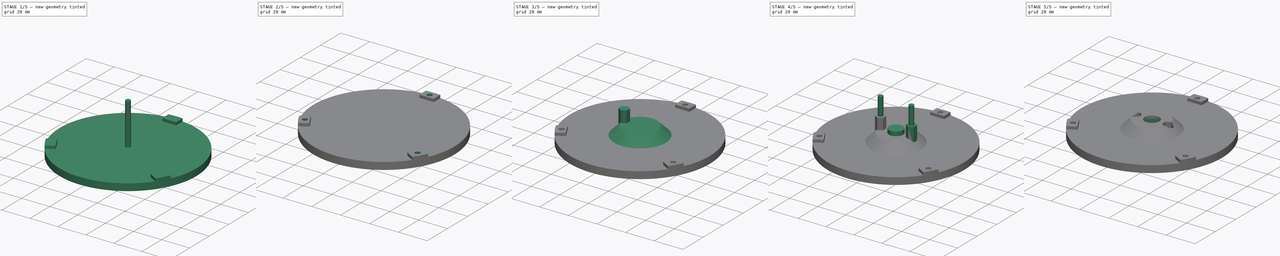
[diagram: build sequence overview — one tinted view per stage of 5, left to right]
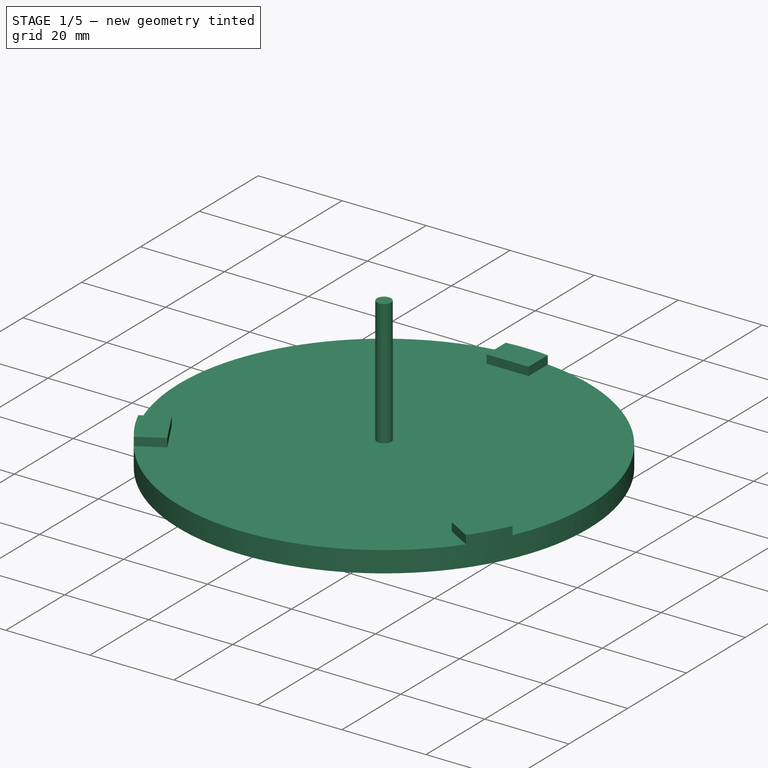
[diagram: stage 1 of 5 — iso view after this stage's code; geometry added in this stage tinted green]
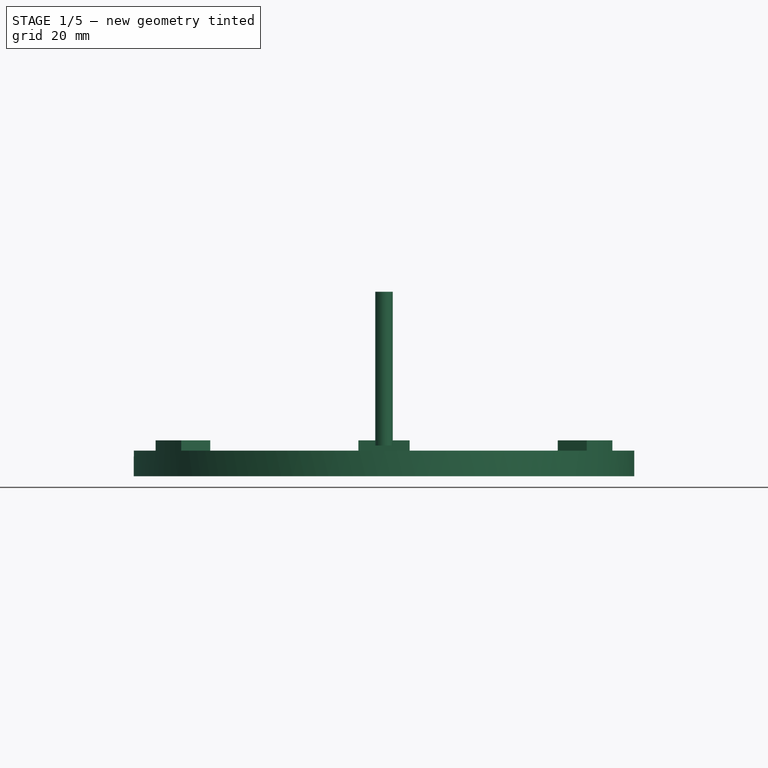
[diagram: stage 1 of 5 — front view after this stage's code; geometry added in this stage tinted green]
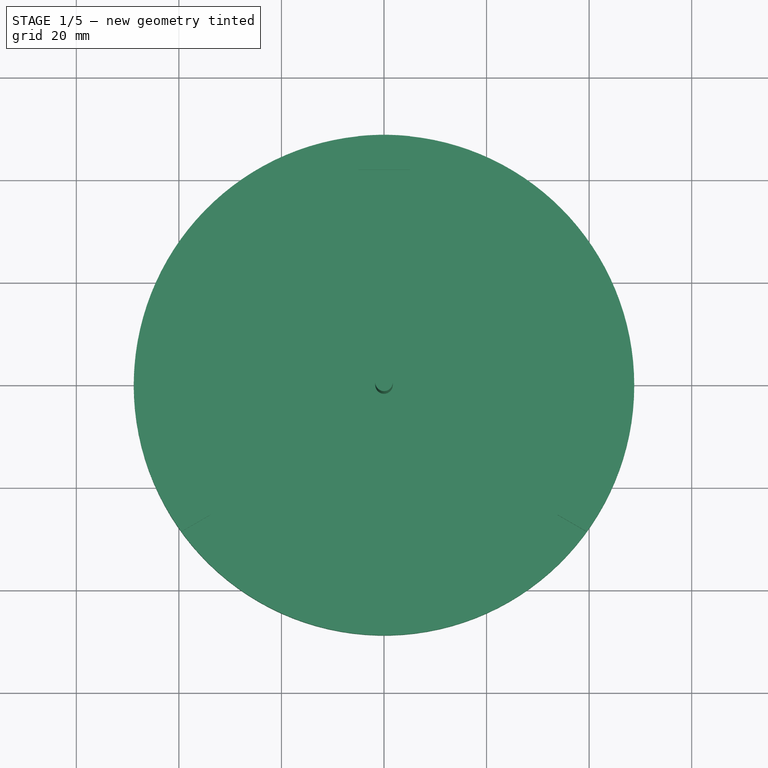
[diagram: stage 1 of 5 — top view after this stage's code; geometry added in this stage tinted green]
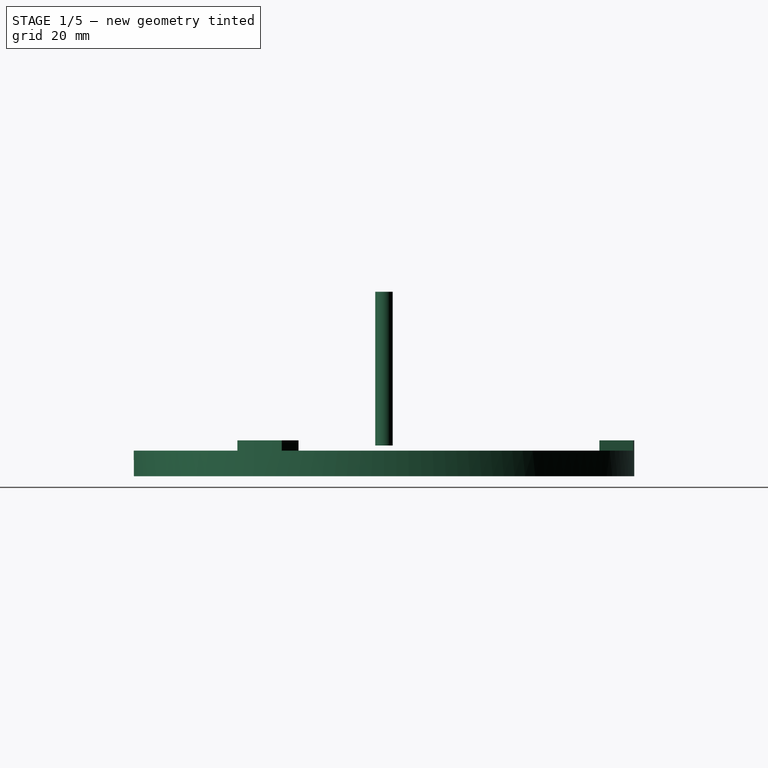
[diagram: stage 1 of 5 — right view after this stage's code; geometry added in this stage tinted green]
FCSTD DOCUMENT  (FreeCAD 0.16R6458 (Git))
Label: Art2BodyAWindow
License: All rights reserved
LicenseURL: http://en.wikipedia.org/wiki/All_rights_reserved
objects: Part::FeaturePython×10, Part::Cylinder×5, Part::MultiFuse×4, Sketcher::SketchObject×2, Part::Cut×2, Part::Prism×1, PartDesign::Revolution×1, PartDesign::Pad×1, Part::Box×1, App::DocumentObjectGroup×1
note: 29 computed .brp shape members not serialized (recipe doc carries the construction recipe); baked Part::Feature solids carry a one-line shape summary decoded from their .brp

FEATURE [Part::Cylinder] Cylinder001  label="M3BoltBody"
  Angle = 360
  Height = 30
  Placement = pos=(0,0,6) rot=(0,0,1;0rad)
  Radius = 1.7
FEATURE [Sketcher::SketchObject] Sketch027
  Placement = pos=(0,0,5) rot=(0,0,1;0rad)
  sketch-geometry (4):
    g0: ArcOfCircle CenterX=0 CenterY=0 CenterZ=0 NormalX=0 NormalY=0 NormalZ=1 Radius=48.8 StartAngle=1.46816 EndAngle=1.67344
    g1: LineSegment StartX=5 StartY=48.5432 StartZ=0 EndX=5 EndY=42 EndZ=0
    g2: LineSegment StartX=5 StartY=42 StartZ=0 EndX=-5 EndY=42 EndZ=0
    g3: LineSegment StartX=-5 StartY=42 StartZ=0 EndX=-5 EndY=48.5432 EndZ=0
  constraints (12):
    c: Coincident(g0,g-1)
    c: Coincident(g1,g2)
    c: Coincident(g2,g3)
    c: Horizontal(g2)
    c: Vertical(g1)
    c: Vertical(g3)
    c: DistanceX(g2) = -10
    c: Radius(g0) = 48.8
    c: DistanceY(g-1,g1) = 42
    c: DistanceX(g-1,g1) = 5
    c: Coincident(g3,g0)
    c: Coincident(g1,g0)
FEATURE [PartDesign::Pad] Pad019
  Length = 2
  Length2 = 100
  Placement = pos=(0,0,5) rot=(0,0,1;0rad)
  Sketch = -> Sketch027
  Type = 0
FEATURE [Part::Cylinder] Cylinder1014  label="Cylinder020"
  Angle = 360
  Height = 5
  Radius = 48.8
FEATURE [Part::FeaturePython] Array007  # Draft array (typed FeaturePython)
  Angle = 360
  ArrayType = 1
  Axis = (0,0,1)
  Base = -> Pad019
  Center = (0,0,0)
  Fuse = false
  IntervalAxis = (0,0,0)
  IntervalX = (1,0,0)
  IntervalY = (0,1,0)
  IntervalZ = (0,0,0)
  NumberPolar = 3
  NumberX = 2
  NumberY = 2
  NumberZ = 1
FEATURE [App::DocumentObjectGroup] Group  label="Master"
  Group = -> [Fusion,Prism,Revolution003,Cylinder1003,Fusion062]
FEATURE [Part::MultiFuse] Fusion063
  Shapes = -> [Array007,Cylinder1014]
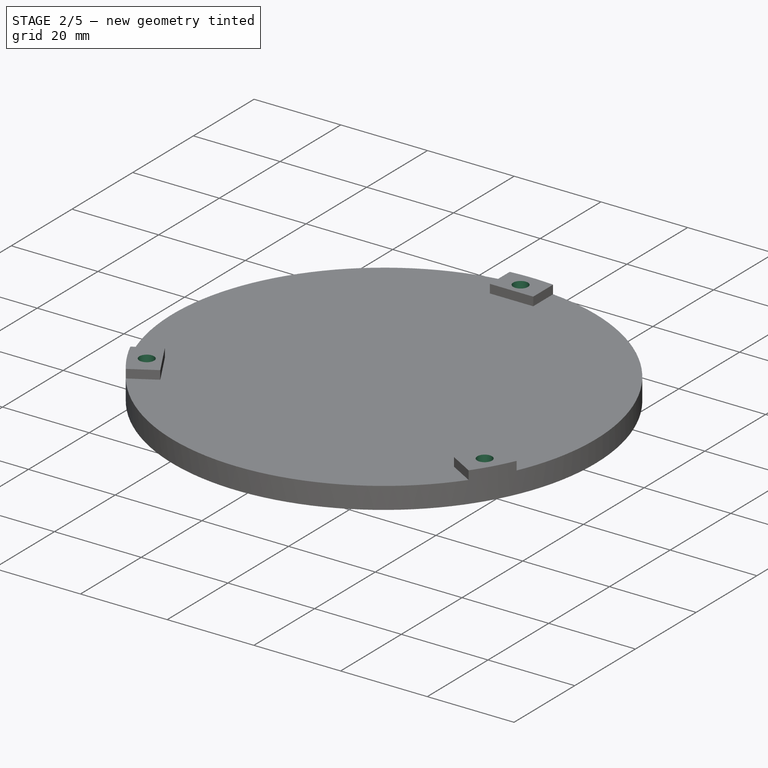
[diagram: stage 2 of 5 — iso view after this stage's code; geometry added in this stage tinted green]
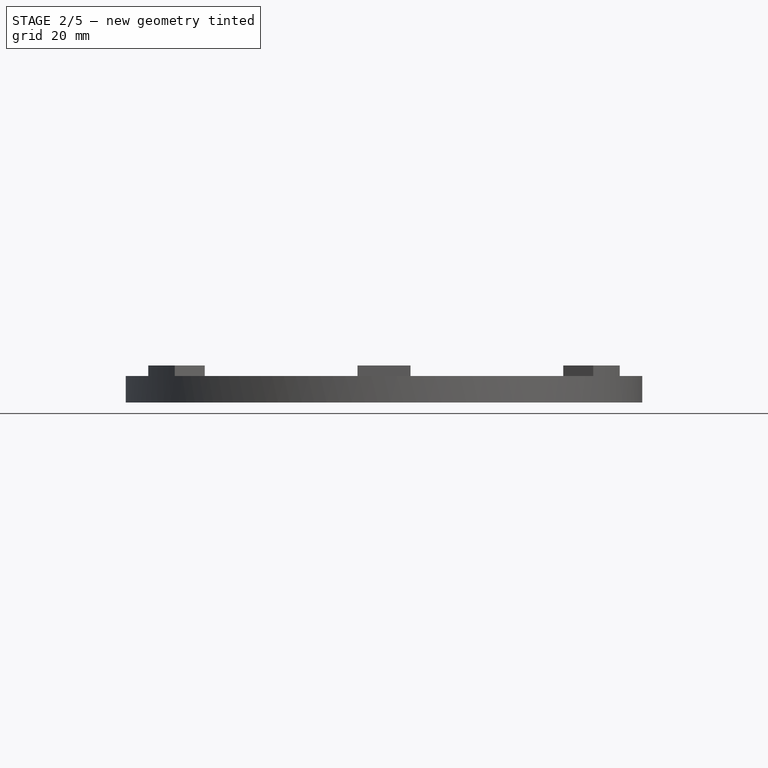
[diagram: stage 2 of 5 — front view after this stage's code; geometry added in this stage tinted green]
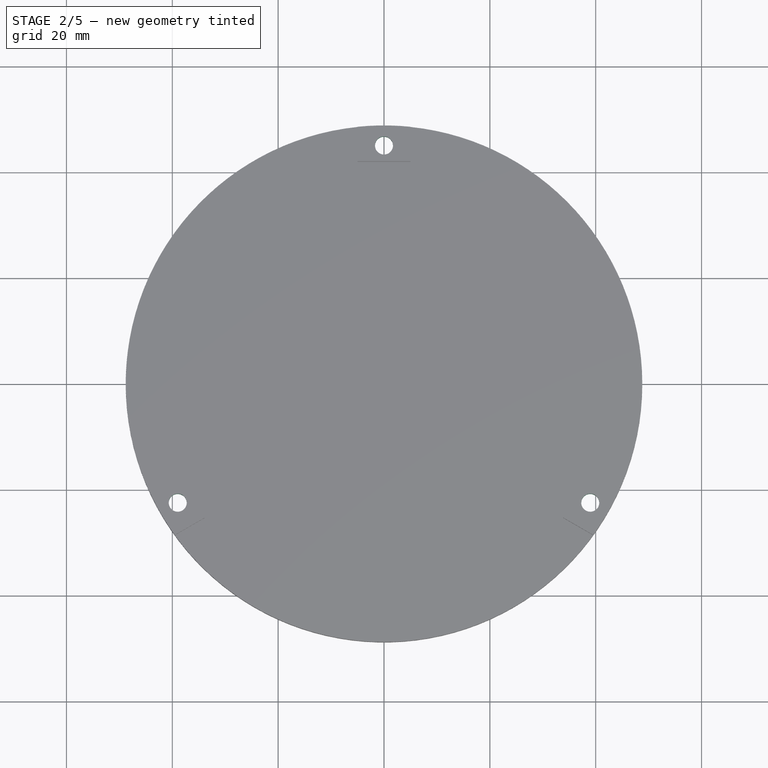
[diagram: stage 2 of 5 — top view after this stage's code; geometry added in this stage tinted green]
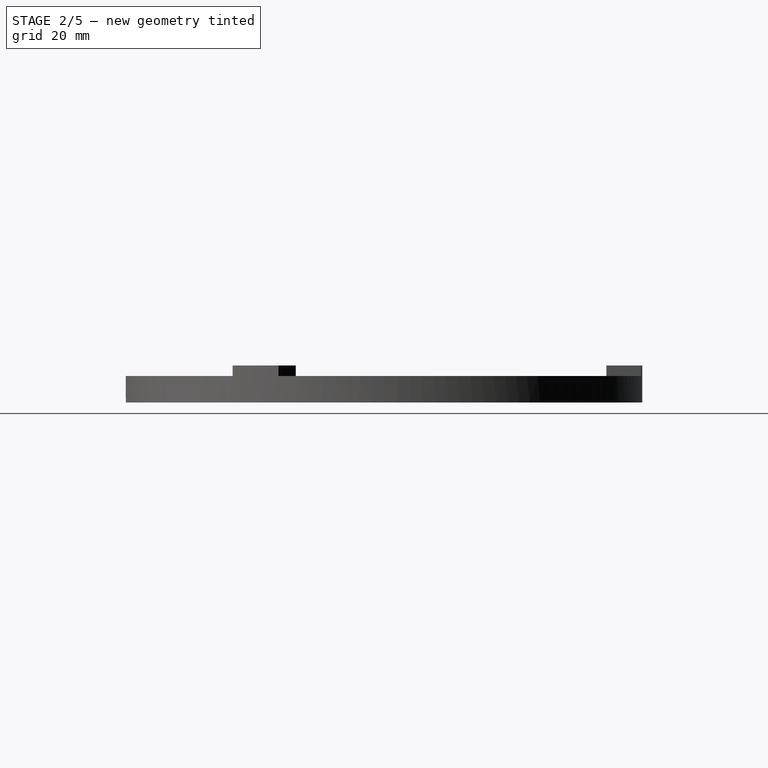
[diagram: stage 2 of 5 — right view after this stage's code; geometry added in this stage tinted green]
FEATURE [Part::Cylinder] Cylinder  label="M3BoltHead"
  Angle = 360
  Height = 7
  Radius = 2.95
FEATURE [Part::MultiFuse] Fusion  label="M3Bolt"
  Shapes = -> [Cylinder001,Cylinder]
FEATURE [Part::FeaturePython] Clone134  label="Clone of M3Bolt038"  # Draft clone (typed FeaturePython)
  Objects = -> [Fusion]
  Placement = pos=(0,45,-4) rot=(0,0,1;0rad)
  Scale = (1,1,1)
FEATURE [Part::FeaturePython] Array008  # Draft array (typed FeaturePython)
  Angle = 360
  ArrayType = 1
  Axis = (0,0,1)
  Base = -> Clone134
  Center = (0,0,0)
  Fuse = false
  IntervalAxis = (0,0,0)
  IntervalX = (1,0,0)
  IntervalY = (0,1,0)
  IntervalZ = (0,0,0)
  NumberPolar = 3
  NumberX = 2
  NumberY = 2
  NumberZ = 1
FEATURE [Part::Cut] Cut
  Base = -> Fusion063
  Tool = -> Array008
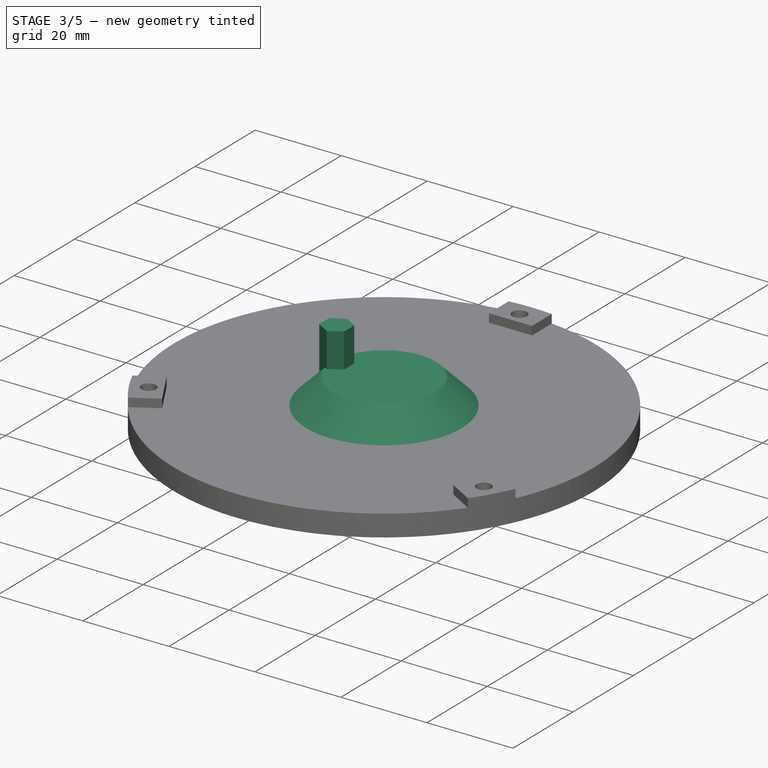
[diagram: stage 3 of 5 — iso view after this stage's code; geometry added in this stage tinted green]
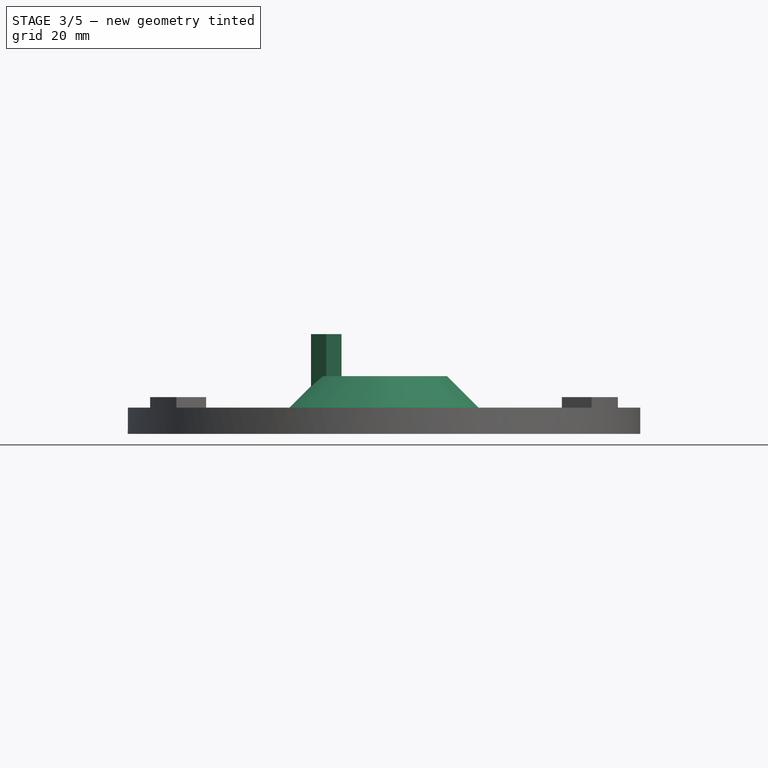
[diagram: stage 3 of 5 — front view after this stage's code; geometry added in this stage tinted green]
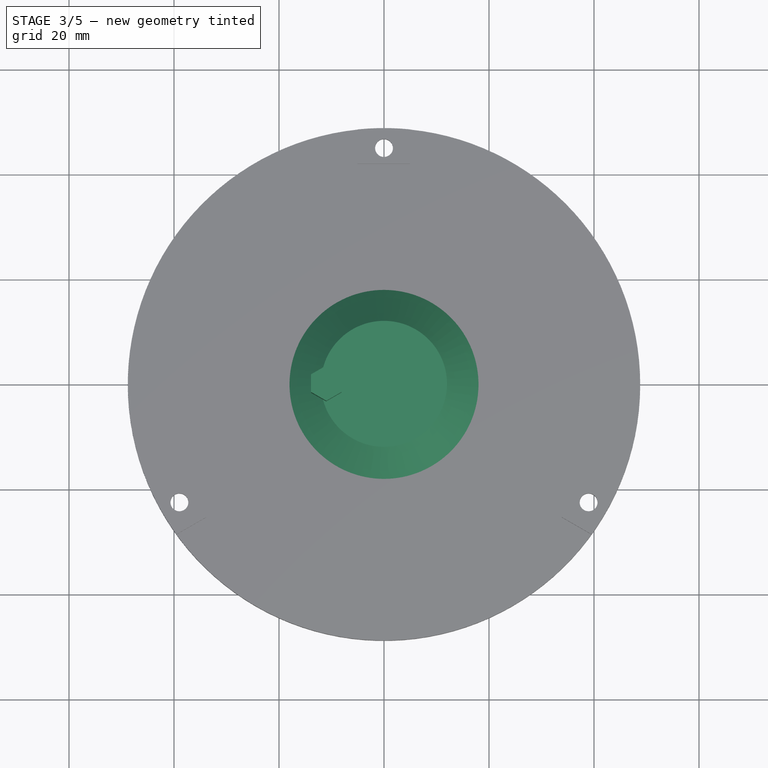
[diagram: stage 3 of 5 — top view after this stage's code; geometry added in this stage tinted green]
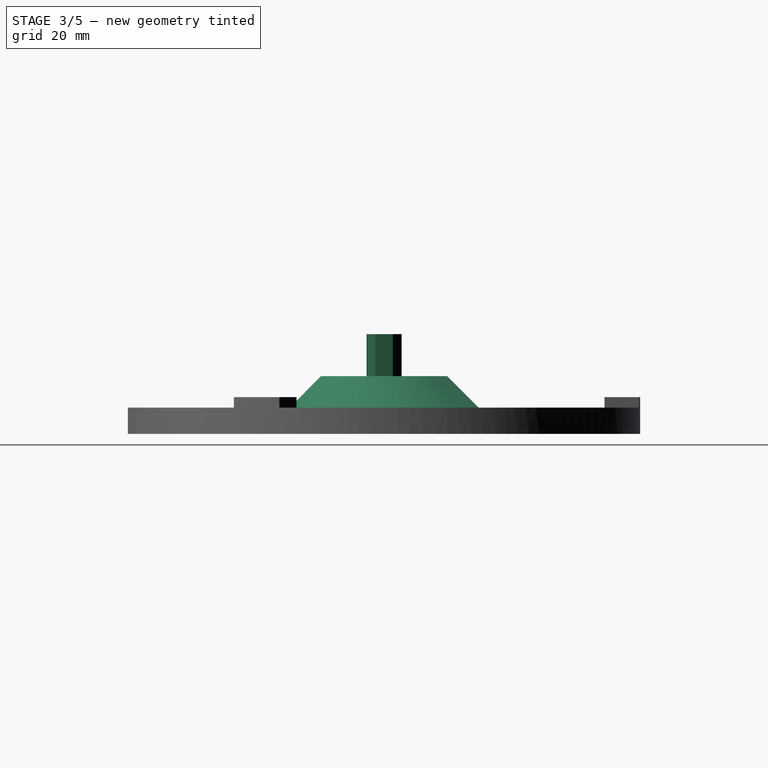
[diagram: stage 3 of 5 — right view after this stage's code; geometry added in this stage tinted green]
FEATURE [Part::Prism] Prism  label="M3Nut"
  Circumradius = 3.35
  Height = 12
  Polygon = 6
FEATURE [Sketcher::SketchObject] Sketch016
  sketch-geometry (4):
    g0: LineSegment StartX=0 StartY=0 StartZ=0 EndX=0 EndY=18 EndZ=0
    g1: LineSegment StartX=0 StartY=18 StartZ=0 EndX=6 EndY=12 EndZ=0
    g2: LineSegment StartX=6 StartY=12 StartZ=0 EndX=6 EndY=0 EndZ=0
    g3: LineSegment StartX=0 StartY=0 StartZ=0 EndX=6 EndY=0 EndZ=0
  constraints (11):
    c: Coincident(g0,g-1)
    c: Vertical(g0)
    c: Coincident(g1,g0)
    c: Coincident(g2,g1)
    c: PointOnObject(g2,g-1)
    c: Vertical(g2)
    c: Coincident(g3,g-1)
    c: Coincident(g3,g2)
    c: DistanceY(g2) = -12
    c: DistanceX(g3) = 6
    c: Angle(g1,g-1) = 0.785398
FEATURE [PartDesign::Revolution] Revolution003  label="625ZZBearingHousingNoHoles"
  Angle = 360
  Axis = (1,0,0)
  Base = (0,0,0)
  ReferenceAxis = -> Sketch016 [H_Axis]
  Sketch = -> Sketch016
FEATURE [Part::FeaturePython] Clone135  label="Clone of 625ZZBearingHousingNoHoles"  # Draft clone (typed FeaturePython)
  Objects = -> [Revolution003]
  Placement = pos=(0,0,5) rot=(0,-1,0;1.5708rad)
  Scale = (1,1,1)
FEATURE [Part::FeaturePython] Clone140  label="Clone of M3Nut006"  # Draft clone (typed FeaturePython)
  Objects = -> [Prism]
  Placement = pos=(-11,0,7) rot=(0,0,1;0.523599rad)
  Scale = (1,1,1)
FEATURE [Part::MultiFuse] Fusion064
  Shapes = -> [Cut,Clone135]
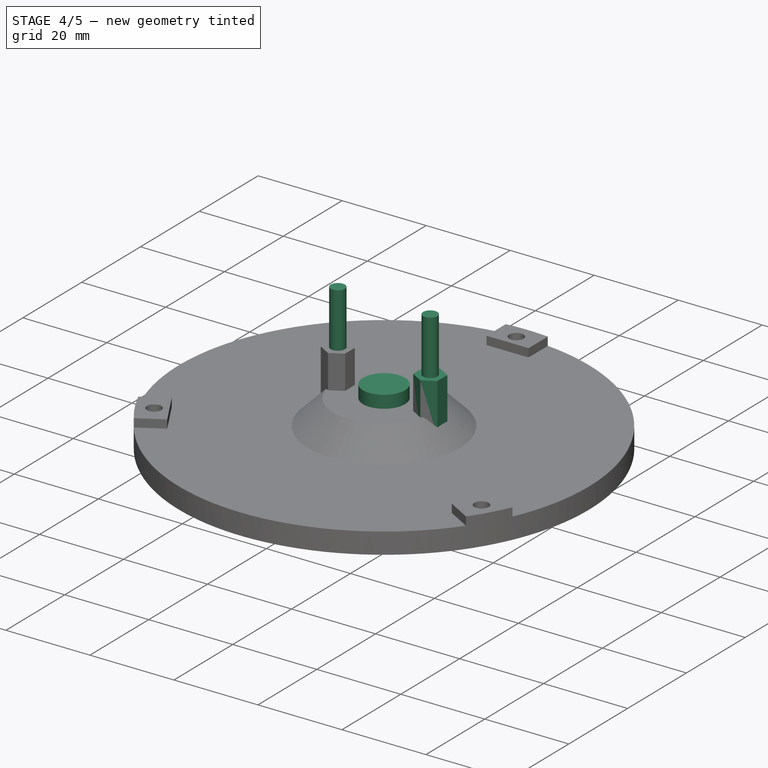
[diagram: stage 4 of 5 — iso view after this stage's code; geometry added in this stage tinted green]
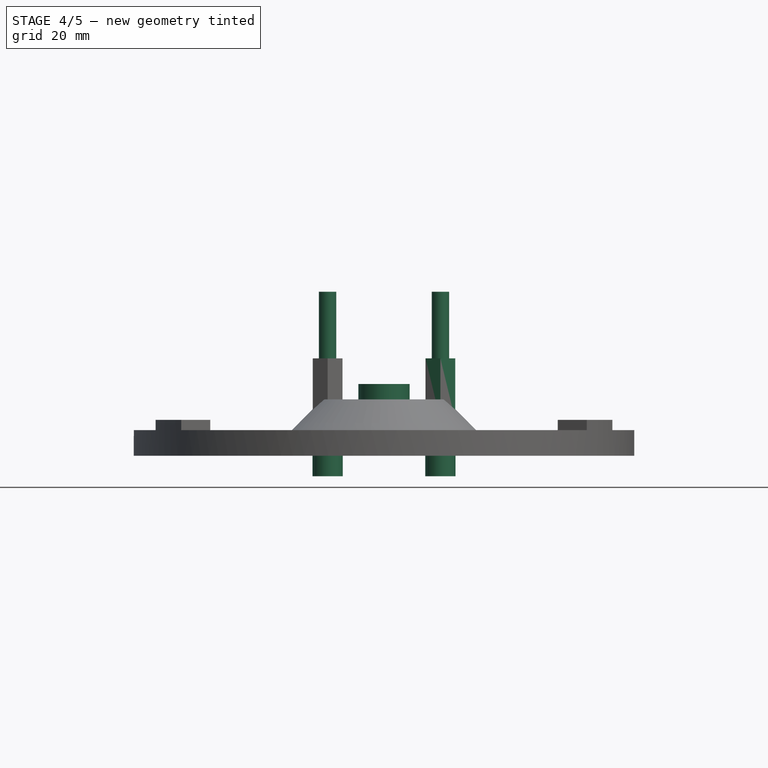
[diagram: stage 4 of 5 — front view after this stage's code; geometry added in this stage tinted green]
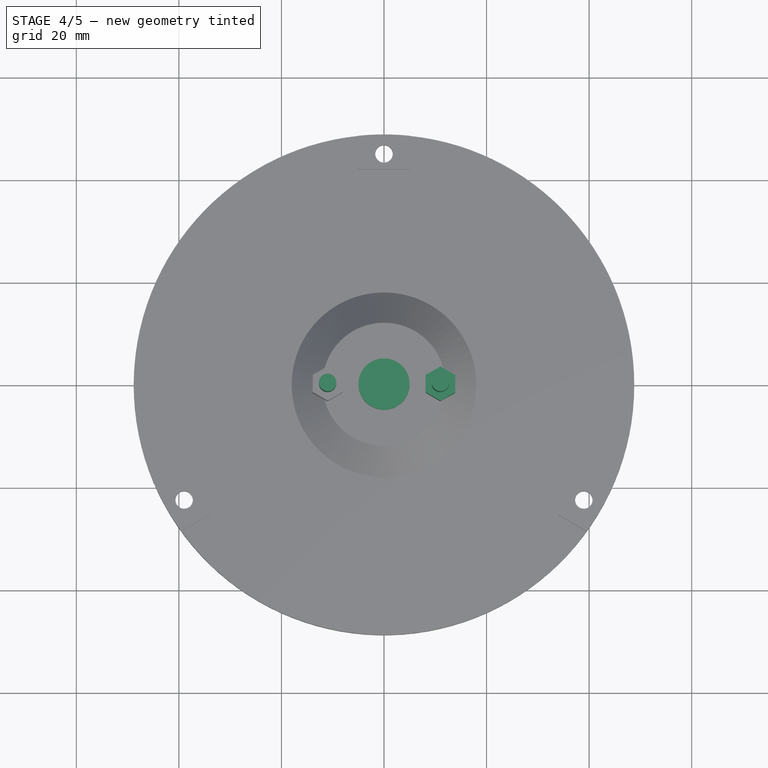
[diagram: stage 4 of 5 — top view after this stage's code; geometry added in this stage tinted green]
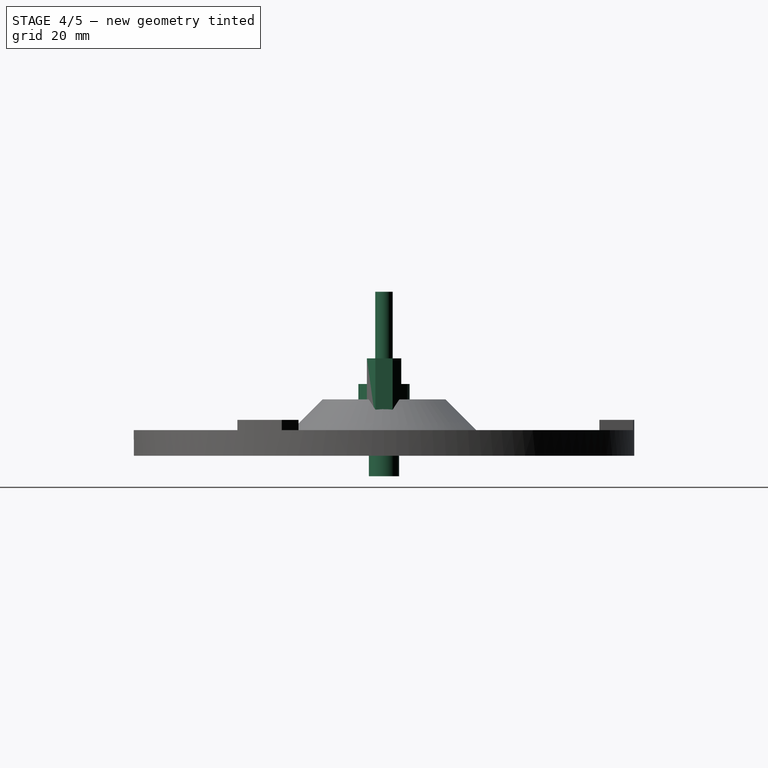
[diagram: stage 4 of 5 — right view after this stage's code; geometry added in this stage tinted green]
FEATURE [Part::Cylinder] Cylinder1015  label="Cylinder021"
  Angle = 360
  Height = 10
  Placement = pos=(0,0,4) rot=(0,0,1;0rad)
  Radius = 5
FEATURE [Part::Box] Box251  label="Cube015"
  Height = 4
  Length = 30.6
  Placement = pos=(-15.3,-3.5,0) rot=(0,0,1;0rad)
  Width = 7
FEATURE [Part::FeaturePython] Clone137  label="Clone of M3Bolt039"  # Draft clone (typed FeaturePython)
  Objects = -> [Fusion]
  Placement = pos=(11,0,-4) rot=(0,0,1;0rad)
  Scale = (1,1,1)
FEATURE [Part::FeaturePython] Clone138  label="Clone of M3Bolt040"  # Draft clone (typed FeaturePython)
  Objects = -> [Fusion]
  Placement = pos=(-11,0,-4) rot=(0,0,1;0rad)
  Scale = (1,1,1)
FEATURE [Part::FeaturePython] Clone139  label="Clone of M3Nut005"  # Draft clone (typed FeaturePython)
  Objects = -> [Prism]
  Placement = pos=(11,0,7) rot=(0,0,1;0.523599rad)
  Scale = (1,1,1)
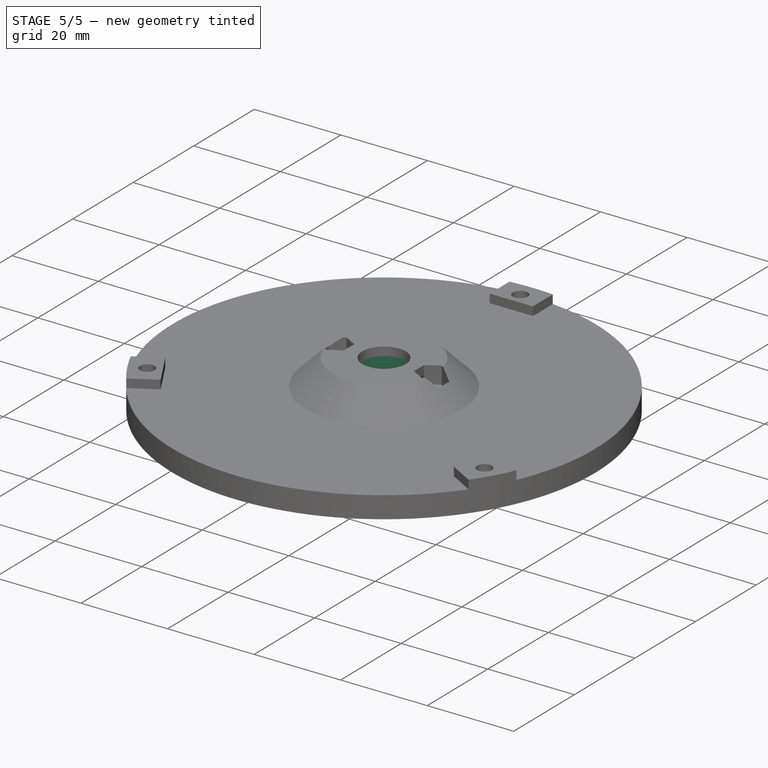
[diagram: stage 5 of 5 — iso view after this stage's code; geometry added in this stage tinted green]
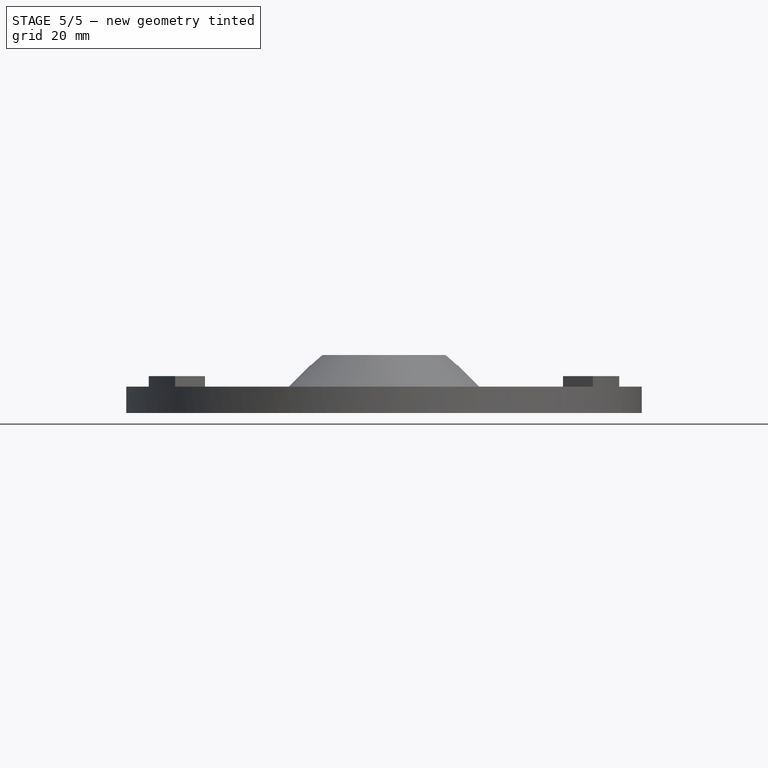
[diagram: stage 5 of 5 — front view after this stage's code; geometry added in this stage tinted green]
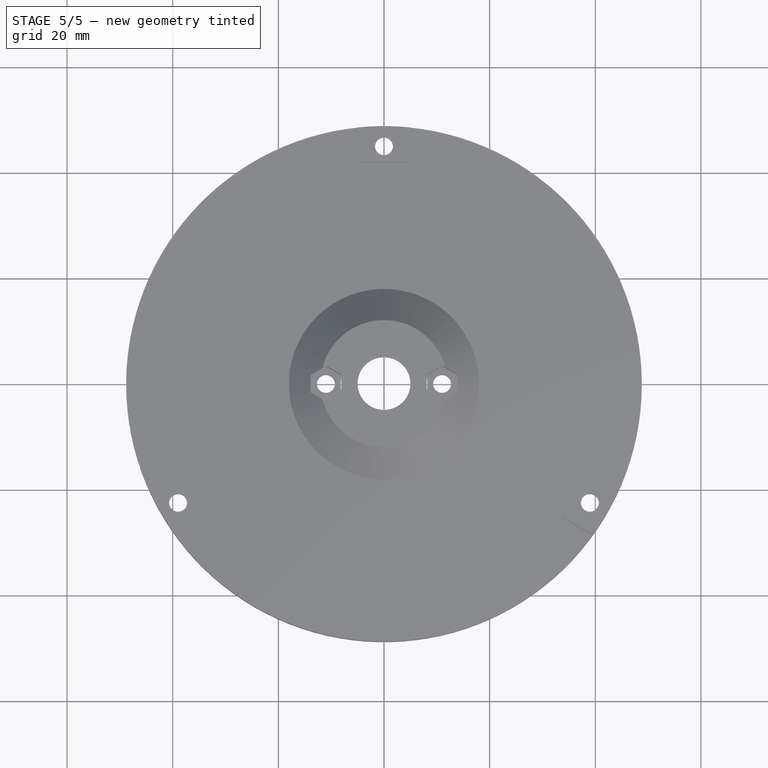
[diagram: stage 5 of 5 — top view after this stage's code; geometry added in this stage tinted green]
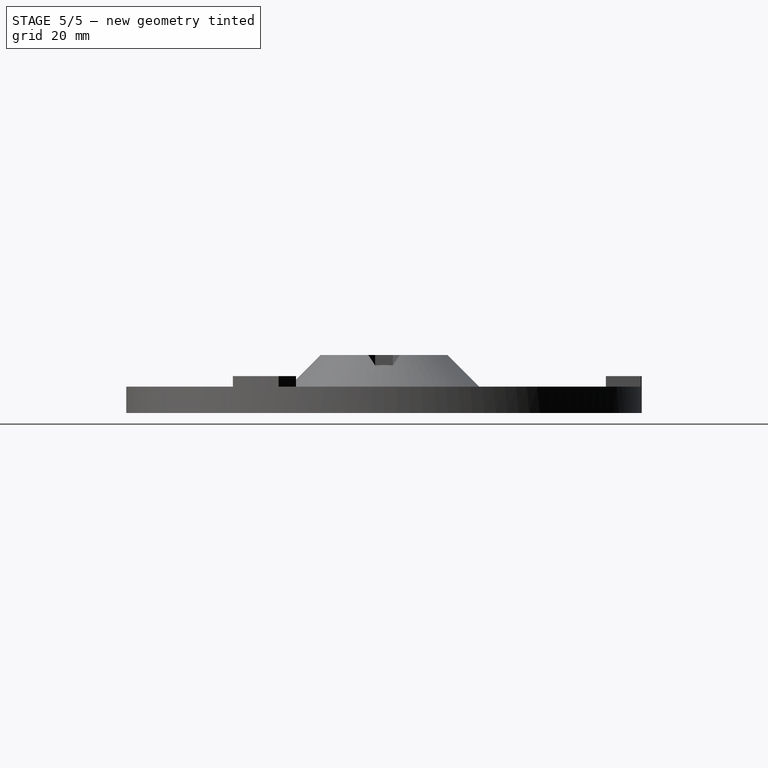
[diagram: stage 5 of 5 — right view after this stage's code; geometry added in this stage tinted green]
FEATURE [Part::Cylinder] Cylinder1003  label="Bearing625ZZMaster"
  Angle = 360
  Height = 15
  Radius = 8.2
FEATURE [Part::FeaturePython] Clone136  label="Clone of Bearing625ZZMaster"  # Draft clone (typed FeaturePython)
  Objects = -> [Cylinder1003]
  Placement = pos=(0,0,-6) rot=(0,0,1;0rad)
  Scale = (1,1,1)
FEATURE [Part::MultiFuse] Fusion062  label="Bearing625zzHoles"
  Shapes = -> [Clone140,Clone139,Box251,Clone137,Clone138,Cylinder1015,Clone136]
FEATURE [Part::FeaturePython] Clone141  label="Clone of Bearing622zzHoles"  # Draft clone (typed FeaturePython)
  Objects = -> [Fusion062]
  Scale = (1,1,1)
FEATURE [Part::Cut] Cut001  label="Art2BodyAWindow"
  Base = -> Fusion064
  Tool = -> Clone141
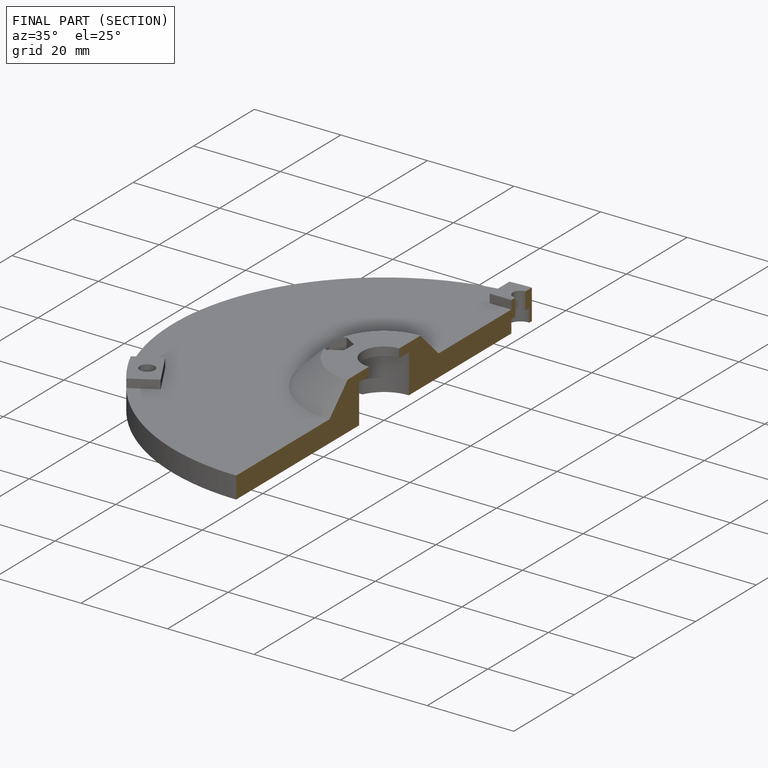
[diagram: finished part — half-section view (interior)]
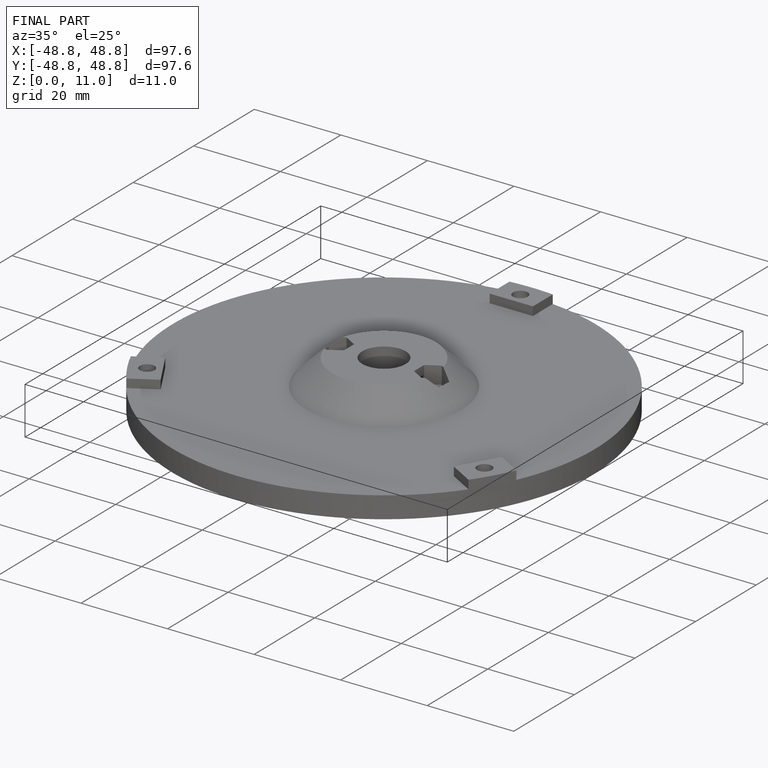
[diagram: finished part — iso view with bounding-box wireframe]
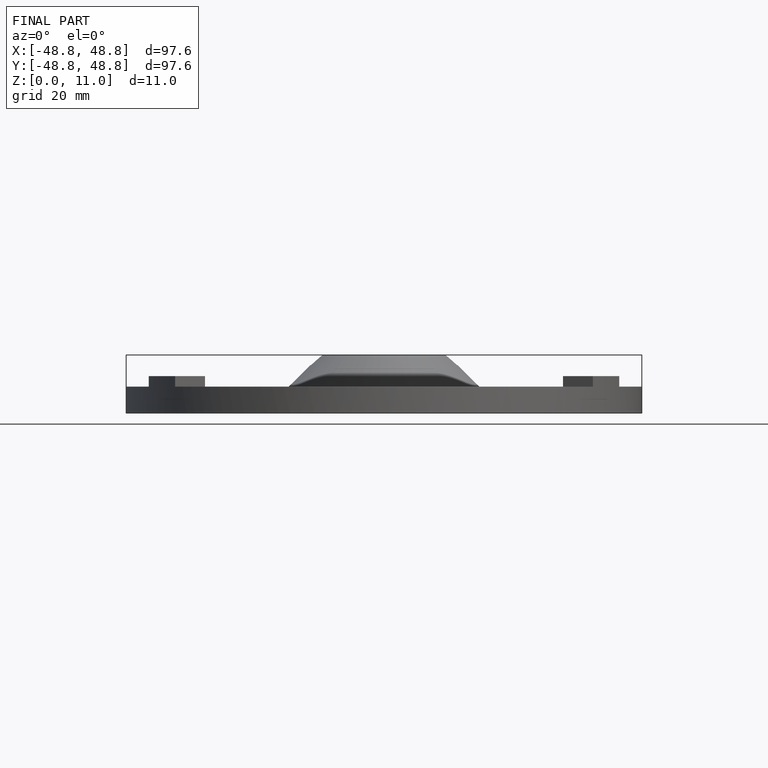
[diagram: finished part — front view with bounding-box wireframe]
